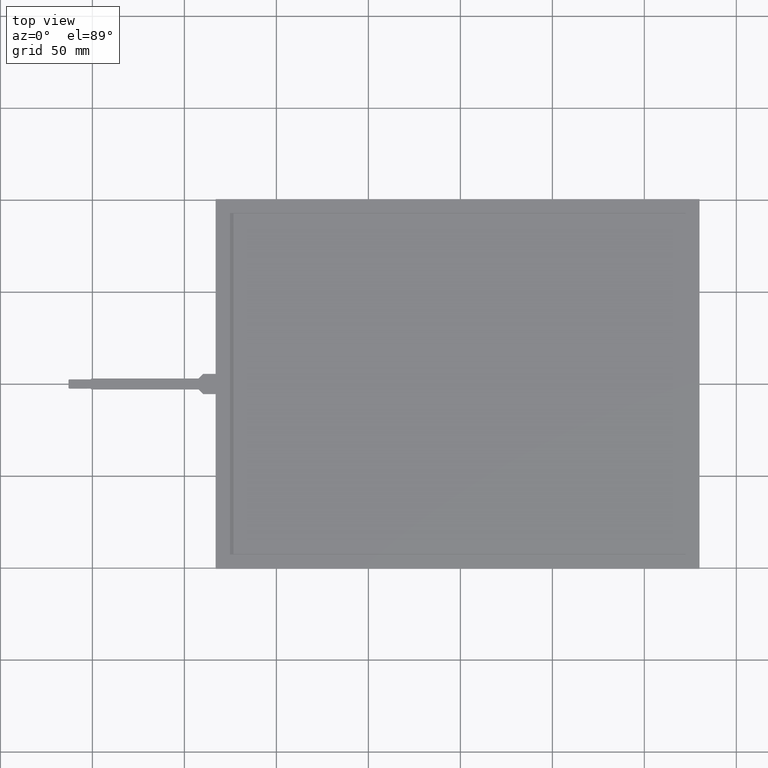
[diagram: clean part render]
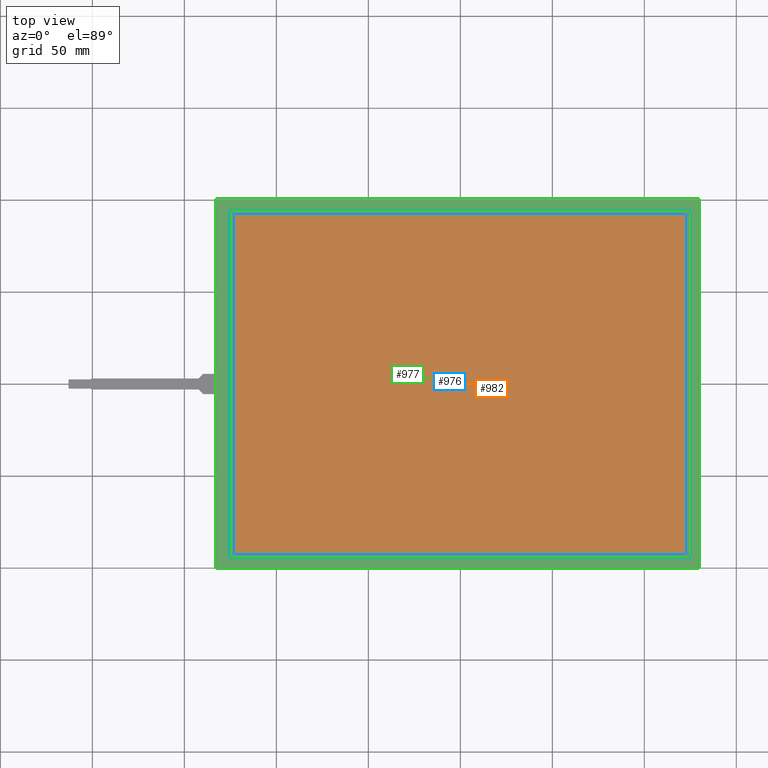
[diagram: same view with three faces highlighted in distinct colors, each labeled with its STEP entity id]
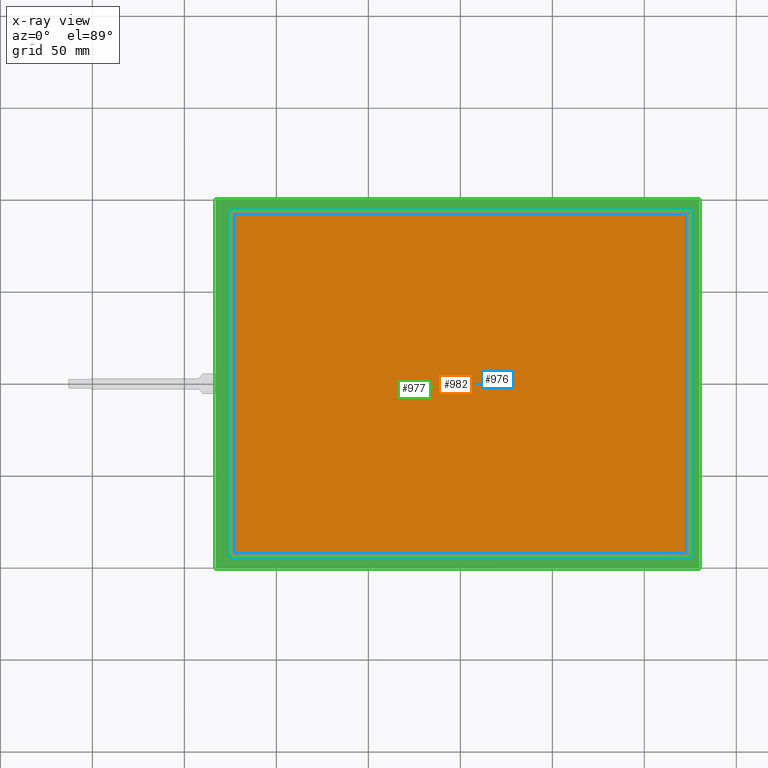
[diagram: x-ray of the same camera — body ghosted, the three highlighted faces saturated]
A machine part, top view with three faces highlighted in distinct colors.
The next image is the same camera in x-ray (body ghosted, the three faces saturated) — at least one of them is partly hidden behind the body in this view.
Their STEP definitions:

[orange] entity #982 — the highlighted planar face has unit normal (0, 0, 1).
#72=FACE_OUTER_BOUND('',#126,.T.);
#126=EDGE_LOOP('',(#710,#711,#712,#713));
#164=LINE('',#1365,#290);
#168=LINE('',#1373,#294);
#171=LINE('',#1379,#297);
#174=LINE('',#1384,#300);
#290=VECTOR('',#1109,10.);
#294=VECTOR('',#1115,10.);
#297=VECTOR('',#1120,10.);
#300=VECTOR('',#1125,10.);
#416=VERTEX_POINT('',#1363);
#417=VERTEX_POINT('',#1364);
#420=VERTEX_POINT('',#1372);
#422=VERTEX_POINT('',#1378);
#508=EDGE_CURVE('',#416,#417,#164,.T.);
#512=EDGE_CURVE('',#420,#416,#168,.T.);
#515=EDGE_CURVE('',#422,#420,#171,.T.);
#518=EDGE_CURVE('',#417,#422,#174,.T.);
#710=ORIENTED_EDGE('',*,*,#508,.T.);
#711=ORIENTED_EDGE('',*,*,#518,.T.);
#712=ORIENTED_EDGE('',*,*,#515,.T.);
#713=ORIENTED_EDGE('',*,*,#512,.T.);
#936=PLANE('',#1055);
#982=ADVANCED_FACE('',(#72),#936,.T.);
#1055=AXIS2_PLACEMENT_3D('',#1436,#1171,#1172);
#1109=DIRECTION('',(1.,0.,0.));
#1115=DIRECTION('',(0.,-1.,0.));
#1120=DIRECTION('',(-1.,0.,0.));
#1125=DIRECTION('',(0.,1.,0.));
#1171=DIRECTION('center_axis',(0.,0.,1.));
#1172=DIRECTION('ref_axis',(1.,0.,0.));
#1363=CARTESIAN_POINT('',(-123.25,-92.5,0.));
#1364=CARTESIAN_POINT('',(123.25,-92.5,0.));
#1365=CARTESIAN_POINT('',(-62.375,-92.5,0.));
#1372=CARTESIAN_POINT('',(-123.25,92.5,0.));
#1373=CARTESIAN_POINT('',(-123.25,46.25,0.));
#1378=CARTESIAN_POINT('',(123.25,92.5,0.));
#1379=CARTESIAN_POINT('',(60.875,92.5,0.));
#1384=CARTESIAN_POINT('',(123.25,-46.25,0.));
#1436=CARTESIAN_POINT('Origin',(-1.50000000000002,2.66453525910038E-14,
0.));

[blue] entity #976 — the highlighted planar face has unit normal (0, 0, -1).
#56=FACE_BOUND('',#119,.T.);
#66=FACE_OUTER_BOUND('',#118,.T.);
#118=EDGE_LOOP('',(#678,#679,#680,#681));
#119=EDGE_LOOP('',(#682,#683,#684,#685));
#166=LINE('',#1369,#292);
#170=LINE('',#1376,#296);
#173=LINE('',#1382,#299);
#175=LINE('',#1385,#301);
#178=LINE('',#1393,#304);
#182=LINE('',#1400,#308);
#185=LINE('',#1406,#311);
#187=LINE('',#1409,#313);
#292=VECTOR('',#1111,10.);
#296=VECTOR('',#1117,10.);
#299=VECTOR('',#1122,10.);
#301=VECTOR('',#1126,10.);
#304=VECTOR('',#1131,10.);
#308=VECTOR('',#1137,10.);
#311=VECTOR('',#1142,10.);
#313=VECTOR('',#1146,10.);
#418=VERTEX_POINT('',#1366);
#419=VERTEX_POINT('',#1368);
#421=VERTEX_POINT('',#1374);
#423=VERTEX_POINT('',#1380);
#426=VERTEX_POINT('',#1390);
#427=VERTEX_POINT('',#1392);
#429=VERTEX_POINT('',#1398);
#431=VERTEX_POINT('',#1404);
#510=EDGE_CURVE('',#418,#419,#166,.T.);
#514=EDGE_CURVE('',#421,#418,#170,.T.);
#517=EDGE_CURVE('',#423,#421,#173,.T.);
#519=EDGE_CURVE('',#419,#423,#175,.T.);
#522=EDGE_CURVE('',#426,#427,#178,.T.);
#526=EDGE_CURVE('',#429,#426,#182,.T.);
#529=EDGE_CURVE('',#431,#429,#185,.T.);
#531=EDGE_CURVE('',#427,#431,#187,.T.);
#678=ORIENTED_EDGE('',*,*,#531,.F.);
#679=ORIENTED_EDGE('',*,*,#522,.F.);
#680=ORIENTED_EDGE('',*,*,#526,.F.);
#681=ORIENTED_EDGE('',*,*,#529,.F.);
#682=ORIENTED_EDGE('',*,*,#519,.F.);
#683=ORIENTED_EDGE('',*,*,#510,.F.);
#684=ORIENTED_EDGE('',*,*,#514,.F.);
#685=ORIENTED_EDGE('',*,*,#517,.F.);
#930=PLANE('',#1049);
#976=ADVANCED_FACE('',(#66,#56),#930,.F.);
#1049=AXIS2_PLACEMENT_3D('',#1410,#1147,#1148);
#1111=DIRECTION('',(1.,0.,0.));
#1117=DIRECTION('',(0.,-1.,0.));
#1122=DIRECTION('',(-1.,0.,0.));
#1126=DIRECTION('',(0.,1.,0.));
#1131=DIRECTION('',(-2.81961403079405E-16,1.,0.));
#1137=DIRECTION('',(-1.,-1.41824897357305E-16,0.));
#1142=DIRECTION('',(9.39871343598016E-17,-1.,0.));
#1146=DIRECTION('',(1.,0.,0.));
#1147=DIRECTION('center_axis',(0.,0.,-1.));
#1148=DIRECTION('ref_axis',(-1.,0.,0.));
#1366=CARTESIAN_POINT('',(-123.25,-92.5,-0.1));
#1368=CARTESIAN_POINT('',(123.25,-92.5,-0.1));
#1369=CARTESIAN_POINT('',(123.25,-92.5,-0.1));
#1374=CARTESIAN_POINT('',(-123.25,92.5,-0.1));
#1376=CARTESIAN_POINT('',(-123.25,-92.5,-0.1));
#1380=CARTESIAN_POINT('',(123.25,92.5,-0.1));
#1382=CARTESIAN_POINT('',(-123.25,92.5,-0.1));
#1385=CARTESIAN_POINT('',(123.25,92.5,-0.1));
#1390=CARTESIAN_POINT('',(-125.25,-94.5,-0.1));
#1392=CARTESIAN_POINT('',(-125.25,94.5,-0.1));
#1393=CARTESIAN_POINT('',(-125.25,94.5000000000001,-0.1));
#1398=CARTESIAN_POINT('',(125.25,-94.4999999999999,-0.1));
#1400=CARTESIAN_POINT('',(-125.25,-94.5,-0.1));
#1404=CARTESIAN_POINT('',(125.25,94.5,-0.1));
#1406=CARTESIAN_POINT('',(125.25,-94.4999999999999,-0.1));
#1409=CARTESIAN_POINT('',(125.25,94.5,-0.1));
#1410=CARTESIAN_POINT('Origin',(0.,1.77635683940025E-14,-0.1));

[green] entity #977 — the highlighted planar face has unit normal (0, 0, 1).
#57=FACE_BOUND('',#121,.T.);
#67=FACE_OUTER_BOUND('',#120,.T.);
#120=EDGE_LOOP('',(#686,#687,#688,#689));
#121=EDGE_LOOP('',(#690,#691,#692,#693));
#176=LINE('',#1389,#302);
#180=LINE('',#1397,#306);
#183=LINE('',#1403,#309);
#186=LINE('',#1408,#312);
#188=LINE('',#1414,#314);
#189=LINE('',#1416,#315);
#190=LINE('',#1418,#316);
#191=LINE('',#1419,#317);
#302=VECTOR('',#1129,10.);
#306=VECTOR('',#1135,10.);
#309=VECTOR('',#1140,10.);
#312=VECTOR('',#1145,10.);
#314=VECTOR('',#1151,10.);
#315=VECTOR('',#1152,10.);
#316=VECTOR('',#1153,10.);
#317=VECTOR('',#1154,10.);
#424=VERTEX_POINT('',#1387);
#425=VERTEX_POINT('',#1388);
#428=VERTEX_POINT('',#1396);
#430=VERTEX_POINT('',#1402);
#432=VERTEX_POINT('',#1412);
#433=VERTEX_POINT('',#1413);
#434=VERTEX_POINT('',#1415);
#435=VERTEX_POINT('',#1417);
#520=EDGE_CURVE('',#424,#425,#176,.T.);
#524=EDGE_CURVE('',#428,#424,#180,.T.);
#527=EDGE_CURVE('',#430,#428,#183,.T.);
#530=EDGE_CURVE('',#425,#430,#186,.T.);
#532=EDGE_CURVE('',#432,#433,#188,.T.);
#533=EDGE_CURVE('',#433,#434,#189,.T.);
#534=EDGE_CURVE('',#434,#435,#190,.T.);
#535=EDGE_CURVE('',#435,#432,#191,.T.);
#686=ORIENTED_EDGE('',*,*,#532,.T.);
#687=ORIENTED_EDGE('',*,*,#533,.T.);
#688=ORIENTED_EDGE('',*,*,#534,.T.);
#689=ORIENTED_EDGE('',*,*,#535,.T.);
#690=ORIENTED_EDGE('',*,*,#520,.T.);
#691=ORIENTED_EDGE('',*,*,#530,.T.);
#692=ORIENTED_EDGE('',*,*,#527,.T.);
#693=ORIENTED_EDGE('',*,*,#524,.T.);
#931=PLANE('',#1050);
#977=ADVANCED_FACE('',(#67,#57),#931,.T.);
#1050=AXIS2_PLACEMENT_3D('',#1411,#1149,#1150);
#1129=DIRECTION('',(-2.81961403079405E-16,1.,0.));
#1135=DIRECTION('',(-1.,-1.41824897357305E-16,0.));
#1140=DIRECTION('',(9.39871343598016E-17,-1.,0.));
#1145=DIRECTION('',(1.,0.,0.));
#1149=DIRECTION('center_axis',(0.,0.,1.));
#1150=DIRECTION('ref_axis',(1.,0.,0.));
#1151=DIRECTION('',(-1.,0.,0.));
#1152=DIRECTION('',(2.65127886477649E-16,-1.,0.));
#1153=DIRECTION('',(1.,1.35084170296597E-16,0.));
#1154=DIRECTION('',(0.,1.,0.));
#1387=CARTESIAN_POINT('',(-125.25,-94.5,0.));
#1388=CARTESIAN_POINT('',(-125.25,94.5,0.));
#1389=CARTESIAN_POINT('',(-125.25,-47.25,0.));
#1396=CARTESIAN_POINT('',(125.25,-94.5,0.));
#1397=CARTESIAN_POINT('',(61.875,-94.5,0.));
#1402=CARTESIAN_POINT('',(125.25,94.5,0.));
#1403=CARTESIAN_POINT('',(125.25,47.25,0.));
#1408=CARTESIAN_POINT('',(-63.375,94.5,0.));
#1411=CARTESIAN_POINT('Origin',(-1.50000000000002,2.66453525910038E-14,
0.));
#1412=CARTESIAN_POINT('',(130.,100.5,0.));
#1413=CARTESIAN_POINT('',(-133.,100.5,0.));
#1414=CARTESIAN_POINT('',(130.,100.5,0.));
#1415=CARTESIAN_POINT('',(-133.,-100.5,0.));
#1416=CARTESIAN_POINT('',(-133.,100.5,0.));
#1417=CARTESIAN_POINT('',(130.,-100.5,0.));
#1418=CARTESIAN_POINT('',(-133.,-100.5,0.));
#1419=CARTESIAN_POINT('',(130.,-100.5,0.));